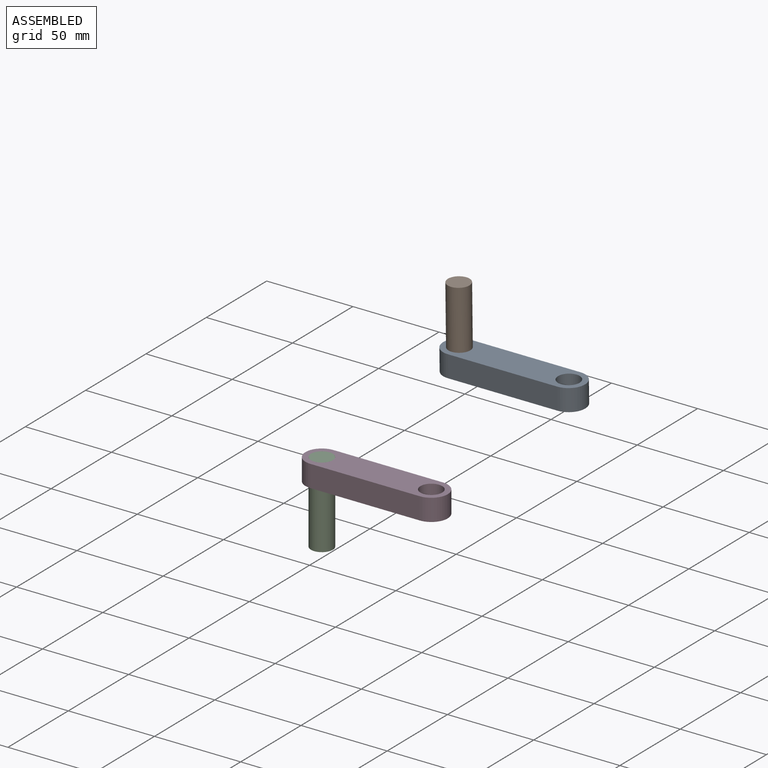
[diagram: assembled view]
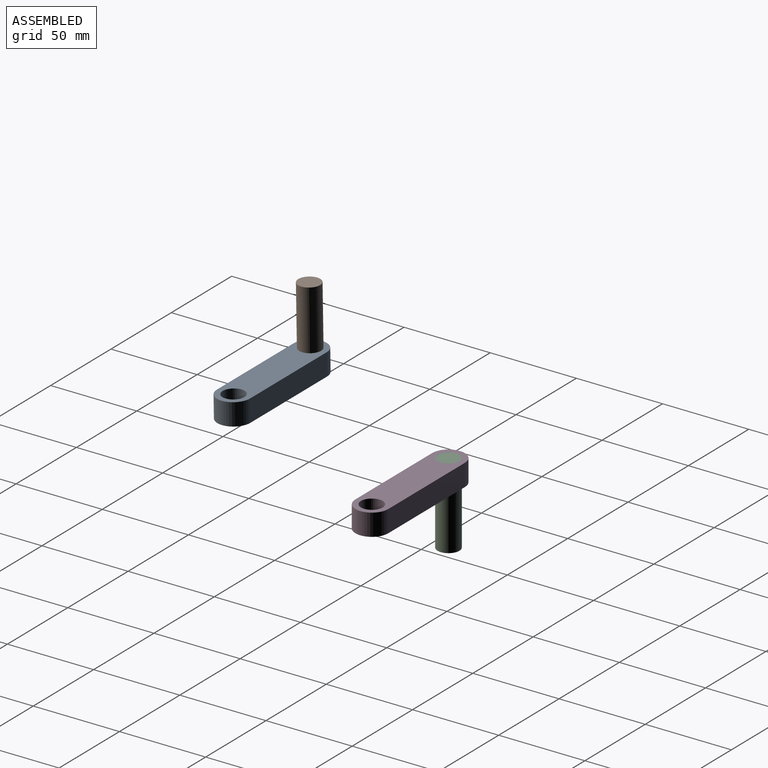
[diagram: assembled view, second angle]
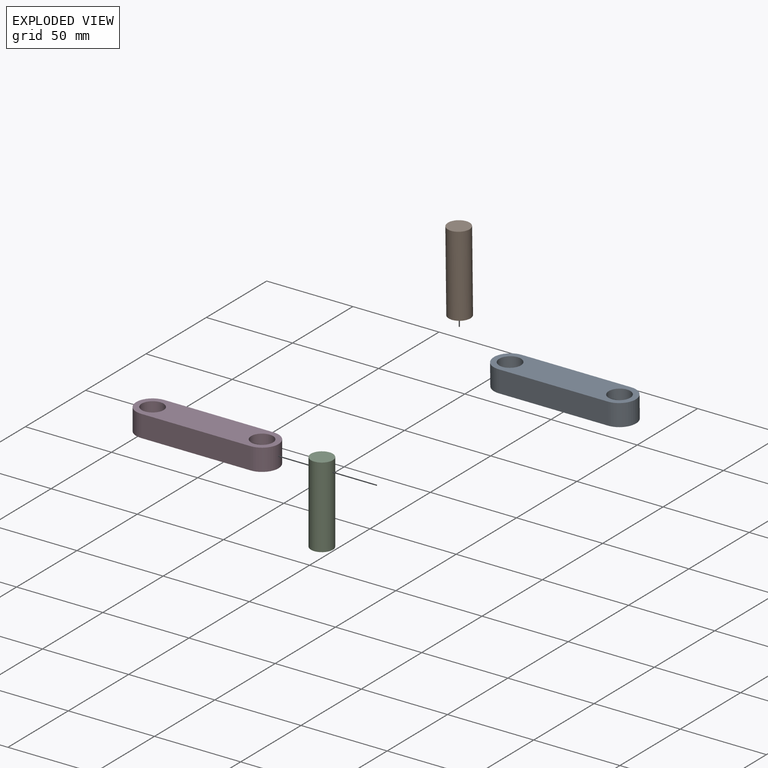
[diagram: exploded view]
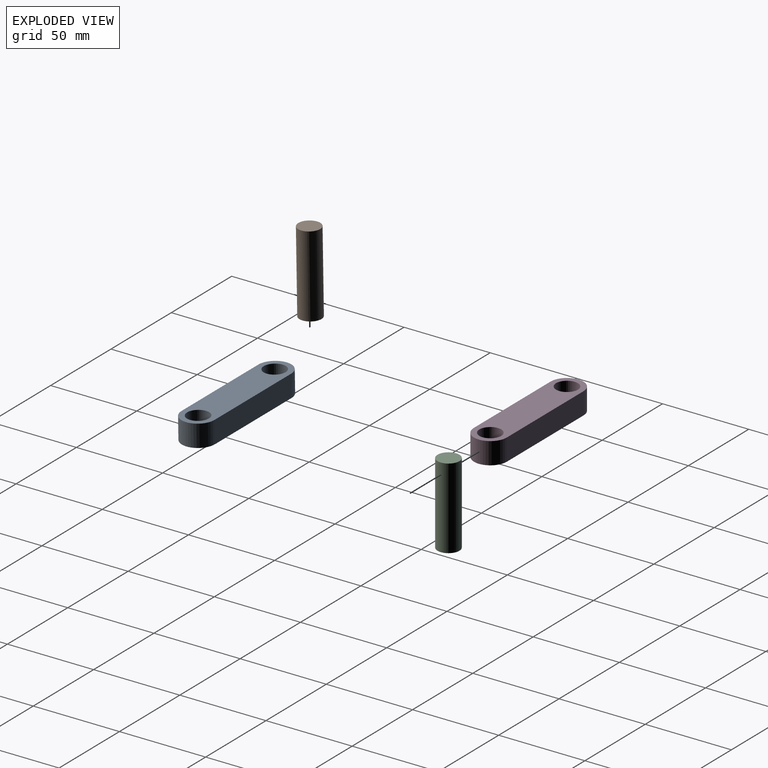
[diagram: exploded view, second angle]
ASSEMBLY  parts=4 mates=2
PART A: 8 faces, bbox 82.6x12.7x19.1 mm
  f0: plane 63.5x12.7mm, normal (0,0,1), area 806.5mm2, adj f1,f3,f4,f5
  f1: cylinder r=9.53mm len=19.05mm, axis (0,1,0), area 380mm2, adj f0,f2,f4,f5
  f2: plane 63.5x12.7mm, normal (0,0,-1), area 806.5mm2, adj f1,f3,f4,f5
  f3: cylinder r=9.53mm len=19.05mm, axis (0,1,0), area 380mm2, adj f0,f2,f4,f5
  f4: plane 82.55x19.05mm, normal (0,-1,0), area 1241.3mm2, adj f0,f1,f2,f3,f6,f7
  f5: plane 82.55x19.05mm, normal (0,1,0), area 1241.3mm2, adj f0,f1,f2,f3,f6,f7
  f6: cylinder r=6.35mm len=12.7mm, axis (0,-1,0), area 506.7mm2, adj f4,f5
  f7: cylinder r=6.35mm len=12.7mm, axis (0,-1,0), area 506.7mm2, adj f4,f5
PART B: 3 faces, bbox 12.7x12.7x47 mm
  f0: cylinder r=6.35mm len=46.99mm, axis (0,0,-1), area 1874.8mm2, adj f1,f2
  f1: plane 12.7x12.7mm, normal (0,0,1), area 126.7mm2, adj f0
  f2: plane 12.7x12.7mm, normal (0,0,-1), area 126.7mm2, adj f0
PART C: same geometry as B
PART D: same geometry as A
PLACE A rot(axis=(1,0,0),91deg) t=(20.29,-2.36,-30.19)mm
PLACE B rot(axis=(1,0,0),1deg) t=(-11.46,-2.15,-42.89)mm
PLACE C t=(-102.69,13.99,-165.46)mm
PLACE D rot(axis=(1,0,0),90deg) t=(-70.94,13.99,-118.47)mm
MATE fastened D.f6 <-> C.f0  axis (0,0,-1) through (-102.69,13.99,-118.47)mm
MATE fastened B.f0 <-> A.f6  axis (0,0.02,-1) through (-11.46,-2.15,-42.89)mm
